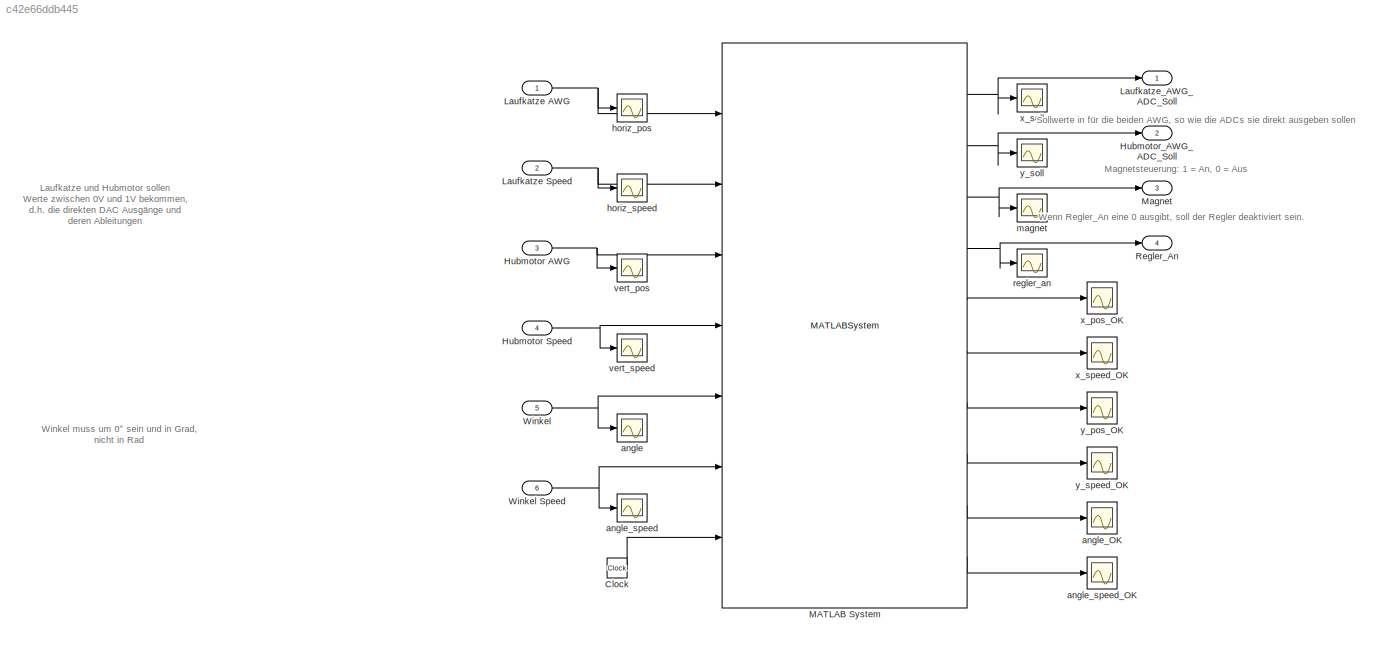
MODEL slx_c42e66ddb445
KIND model
CONFIG AbsTol = auto
CONFIG EnableMultiTasking = off
CONFIG FixedStep = 0.001
CONFIG MaxStep = auto
CONFIG MinStep = auto
CONFIG PostLoadFcn = , if any(exist('dsrtsu_mdlpostloadfcn', 'file') == [2, 3, 6]), try dsrtsu_mdlpostloadfcn('Execute', bdroot); catch fprintf('Error in PostLoadFcn (dsrtsu_mdlpostloadfcn) for model "%s":\n %s\n', bdroot, lasterr); end, end, \n
CONFIG RelTol = 1e-3
CONFIG SampleTimeConstraint = Unconstrained
CONFIG Solver = ode1
CONFIG SolverName = ode1
CONFIG StartTime = 0.0
CONFIG StopTime = 80
BLOCK [Clock] Clock
BLOCK [Inport] Hubmotor AWG
  IconDisplay = Port number
  OutDataTypeStr = double
  OutMax = 1
  OutMin = 0
  Port = 3
  PortDimensions = 1
  SignalType = real
BLOCK [Inport] Hubmotor Speed
  IconDisplay = Port number
  OutDataTypeStr = double
  Port = 4
  SignalType = real
BLOCK [Outport] Hubmotor_AWG_ADC_Soll
  IconDisplay = Port number
  Port = 2
  SignalName = Hubmotor_AWG_ADC_Soll
BLOCK [Inport] Laufkatze AWG
  IconDisplay = Port number
  OutDataTypeStr = double
  OutMax = 1
  OutMin = 0
  PortDimensions = 1
  SignalType = real
BLOCK [Inport] Laufkatze Speed
  IconDisplay = Port number
  OutDataTypeStr = double
  Port = 2
  SignalType = real
BLOCK [Outport] Laufkatze_AWG_ADC_Soll
  IconDisplay = Port number
  SignalName = Laufkatze_AWG_ADC_Soll
BLOCK [MATLABSystem] MATLAB System
  MaskDisplay = disp('Steuerung_Automatisierung');\nport_label('input',1,'horiz_pos');\nport_label('input',2,'horiz_speed');\nport_label('input',3,'vert_pos');\nport_label('input',4,'vert_speed');\nport_label('input',5,'angle');\nport_label('input',6,'angle_speed');\nport_label('input',7,'Clock');\nport_label('output',1,'horiz_setpoint');\nport_label('output',2,'vert_setpoint');\nport_label('output',3,'magnet_on');\nport_la...<+300ch>
  MaskType = Steuerung_Automatisierung
  Ports = [7, 10]
  SimulateUsing = Code generation
  System = Steuerung_Automatisierung
  add_midpoints = true
  box_sequence = [ 1, 2, 3, 4, 5 ]
  midpoint_height = -1
  param = param
  start_time = 30
BLOCK [Outport] Magnet
  IconDisplay = Port number
  Port = 3
  SignalName = Magnet
BLOCK [Outport] Regler_An
  IconDisplay = Port number
  Port = 4
  SignalName = Regler_An
BLOCK [Inport] Winkel
  IconDisplay = Port number
  OutDataTypeStr = double
  OutMax = 360
  OutMin = 0
  Port = 5
  PortDimensions = 1
  SignalType = real
BLOCK [Inport] Winkel  Speed
  IconDisplay = Port number
  OutDataTypeStr = double
  Port = 6
  SignalType = real
BLOCK [Scope] angle
  NumInputPorts = 1
  Ports = [1]
  ScopeSpecificationString = Simulink.scopes.TimeScopeBlockCfg('CurrentConfiguration', extmgr.ConfigurationSet(extmgr.Configuration('Core','General UI',true),extmgr.Configuration('Core','Source UI',true),extmgr.Configuration('Sources','WiredSimulink',true,'DataLoggingVariableName','ScopeData14','DataLoggingSaveFormat','Array','DataLoggingDecimation','1','DataLoggingDecimateData',true),extmgr.Configuration('Visuals','Time Doma...<+1457ch>
BLOCK [Scope] angle_OK
  NumInputPorts = 1
  Ports = [1]
  ScopeSpecificationString = Simulink.scopes.TimeScopeBlockCfg('CurrentConfiguration', extmgr.ConfigurationSet(extmgr.Configuration('Core','General UI',true),extmgr.Configuration('Core','Source UI',true),extmgr.Configuration('Sources','WiredSimulink',true,'DataLoggingVariableName','ScopeData8'),extmgr.Configuration('Visuals','Time Domain',true,'SerializedDisplays',{struct('MinYLimReal','-0.125','MaxYLimReal','1.125','YLabelRe...<+1362ch>
BLOCK [Scope] angle_speed
  NumInputPorts = 1
  Ports = [1]
  ScopeSpecificationString = Simulink.scopes.TimeScopeBlockCfg('CurrentConfiguration', extmgr.ConfigurationSet(extmgr.Configuration('Core','General UI',true),extmgr.Configuration('Core','Source UI',true),extmgr.Configuration('Sources','WiredSimulink',true,'DataLoggingVariableName','ScopeData15','DataLoggingSaveFormat','Array','DataLoggingDecimation','1','DataLoggingDecimateData',true),extmgr.Configuration('Visuals','Time Doma...<+1464ch>
BLOCK [Scope] angle_speed_OK
  NumInputPorts = 1
  Ports = [1]
  ScopeSpecificationString = C++SS(StrPVP('SaveName','ScopeData9'),StrPVP('LimitDataPoints','on'),StrPVP('DataFormat','Array'),StrPVP('Decimation','1'),StrPVP('BlockParamSampleInput','off'))
BLOCK [Scope] horiz_pos
  NumInputPorts = 1
  Ports = [1]
  ScopeSpecificationString = Simulink.scopes.TimeScopeBlockCfg('CurrentConfiguration', extmgr.ConfigurationSet(extmgr.Configuration('Core','General UI',true),extmgr.Configuration('Core','Source UI',true),extmgr.Configuration('Sources','WiredSimulink',true,'DataLoggingVariableName','ScopeData10','DataLoggingSaveFormat','Array','DataLoggingDecimation','1','DataLoggingDecimateData',true),extmgr.Configuration('Visuals','Time Doma...<+1532ch>
BLOCK [Scope] horiz_speed
  NumInputPorts = 1
  Ports = [1]
  ScopeSpecificationString = Simulink.scopes.TimeScopeBlockCfg('CurrentConfiguration', extmgr.ConfigurationSet(extmgr.Configuration('Core','General UI',true),extmgr.Configuration('Core','Source UI',true),extmgr.Configuration('Sources','WiredSimulink',true,'DataLoggingVariableName','ScopeData11','DataLoggingSaveFormat','Array','DataLoggingDecimation','1','DataLoggingDecimateData',true),extmgr.Configuration('Visuals','Time Doma...<+1466ch>
BLOCK [Scope] magnet
  NumInputPorts = 1
  Ports = [1]
  ScopeSpecificationString = Simulink.scopes.TimeScopeBlockCfg('CurrentConfiguration', extmgr.ConfigurationSet(extmgr.Configuration('Core','General UI',true),extmgr.Configuration('Core','Source UI',true),extmgr.Configuration('Sources','WiredSimulink',true,'DataLoggingVariableName','ScopeData2'),extmgr.Configuration('Visuals','Time Domain',true,'SerializedDisplays',{struct('MinYLimReal','-1.00000','MaxYLimReal','1.00000','YLab...<+1398ch>
BLOCK [Scope] regler_an
  NumInputPorts = 1
  Ports = [1]
  ScopeSpecificationString = Simulink.scopes.TimeScopeBlockCfg('CurrentConfiguration', extmgr.ConfigurationSet(extmgr.Configuration('Core','General UI',true),extmgr.Configuration('Core','Source UI',true),extmgr.Configuration('Sources','WiredSimulink',true,'DataLoggingVariableName','ScopeData3','DataLoggingLimitDataPoints',true,'DataLoggingSaveFormat','Array','DataLoggingDecimation','1','DataLoggingDecimateData',true),extmgr.C...<+1465ch>
BLOCK [Scope] vert_pos
  NumInputPorts = 1
  Ports = [1]
  ScopeSpecificationString = Simulink.scopes.TimeScopeBlockCfg('CurrentConfiguration', extmgr.ConfigurationSet(extmgr.Configuration('Core','General UI',true),extmgr.Configuration('Core','Source UI',true),extmgr.Configuration('Sources','WiredSimulink',true,'DataLoggingVariableName','ScopeData12','DataLoggingSaveFormat','Array','DataLoggingDecimation','1','DataLoggingDecimateData',true),extmgr.Configuration('Visuals','Time Doma...<+1463ch>
BLOCK [Scope] vert_speed
  NumInputPorts = 1
  Ports = [1]
  ScopeSpecificationString = Simulink.scopes.TimeScopeBlockCfg('CurrentConfiguration', extmgr.ConfigurationSet(extmgr.Configuration('Core','General UI',true),extmgr.Configuration('Core','Source UI',true),extmgr.Configuration('Sources','WiredSimulink',true,'DataLoggingVariableName','ScopeData13','DataLoggingSaveFormat','Array','DataLoggingDecimation','1','DataLoggingDecimateData',true),extmgr.Configuration('Visuals','Time Doma...<+1465ch>
BLOCK [Scope] x_pos_OK
  NumInputPorts = 1
  Ports = [1]
  ScopeSpecificationString = Simulink.scopes.TimeScopeBlockCfg('CurrentConfiguration', extmgr.ConfigurationSet(extmgr.Configuration('Core','General UI',true),extmgr.Configuration('Core','Source UI',true),extmgr.Configuration('Sources','WiredSimulink',true,'DataLoggingVariableName','ScopeData4'),extmgr.Configuration('Visuals','Time Domain',true,'SerializedDisplays',{struct('MinYLimReal','-0.8232','MaxYLimReal','1.1768','YLabel...<+1467ch>
BLOCK [Scope] x_soll
  NumInputPorts = 1
  Ports = [1]
  ScopeSpecificationString = Simulink.scopes.TimeScopeBlockCfg('CurrentConfiguration', extmgr.ConfigurationSet(extmgr.Configuration('Core','General UI',true),extmgr.Configuration('Core','Source UI',true),extmgr.Configuration('Sources','WiredSimulink',true,'DataLoggingSaveFormat','Array','DataLoggingDecimation','1','DataLoggingDecimateData',true),extmgr.Configuration('Visuals','Time Domain',true,'SerializedDisplays',{struct('M...<+1474ch>
BLOCK [Scope] x_speed_OK
  NumInputPorts = 1
  Ports = [1]
  ScopeSpecificationString = Simulink.scopes.TimeScopeBlockCfg('CurrentConfiguration', extmgr.ConfigurationSet(extmgr.Configuration('Core','General UI',true),extmgr.Configuration('Core','Source UI',true),extmgr.Configuration('Sources','WiredSimulink',true,'DataLoggingVariableName','ScopeData5'),extmgr.Configuration('Visuals','Time Domain',true,'SerializedDisplays',{struct('MinYLimReal','-0.125','MaxYLimReal','1.125','YLabelRe...<+1392ch>
BLOCK [Scope] y_pos_OK
  NumInputPorts = 1
  Ports = [1]
  ScopeSpecificationString = Simulink.scopes.TimeScopeBlockCfg('CurrentConfiguration', extmgr.ConfigurationSet(extmgr.Configuration('Core','General UI',true),extmgr.Configuration('Core','Source UI',true),extmgr.Configuration('Sources','WiredSimulink',true,'DataLoggingVariableName','ScopeData6'),extmgr.Configuration('Visuals','Time Domain',true,'SerializedDisplays',{struct('MinYLimReal','-1.00000','MaxYLimReal','1.00000','YLab...<+1403ch>
BLOCK [Scope] y_soll
  NumInputPorts = 1
  Ports = [1]
  ScopeSpecificationString = Simulink.scopes.TimeScopeBlockCfg('CurrentConfiguration', extmgr.ConfigurationSet(extmgr.Configuration('Core','General UI',true),extmgr.Configuration('Core','Source UI',true),extmgr.Configuration('Sources','WiredSimulink',true,'DataLoggingVariableName','ScopeData1','DataLoggingSaveFormat','Array','DataLoggingDecimation','1','DataLoggingDecimateData',true),extmgr.Configuration('Visuals','Time Domai...<+1465ch>
BLOCK [Scope] y_speed_OK
  NumInputPorts = 1
  Ports = [1]
  ScopeSpecificationString = Simulink.scopes.TimeScopeBlockCfg('CurrentConfiguration', extmgr.ConfigurationSet(extmgr.Configuration('Core','General UI',true),extmgr.Configuration('Core','Source UI',true),extmgr.Configuration('Sources','WiredSimulink',true,'DataLoggingVariableName','ScopeData7','DataLoggingSaveFormat','Array','DataLoggingDecimation','1','DataLoggingDecimateData',true),extmgr.Configuration('Visuals','Time Domai...<+1453ch>
ANNOTATION (root): Winkel muss um 0° sein und in Grad, nicht in Rad
ANNOTATION (root): Laufkatze und Hubmotor sollen Werte zwischen 0V und 1V bekommen, d.h. die direkten DAC Ausgänge und deren Ableitungen
ANNOTATION (root): Magnetsteuerung: 1 = An, 0 = Aus
ANNOTATION (root): Sollwerte in für die beiden AWG, so wie die ADCs sie direkt ausgeben sollen
ANNOTATION (root): Wenn Regler_An eine 0 ausgibt, soll der Regler deaktiviert sein.
LINE Clock:1 -> MATLAB System:7
NET Hubmotor AWG:1 -> MATLAB System:3, vert_pos:1
NET Hubmotor Speed:1 -> MATLAB System:4, vert_speed:1
NET Laufkatze AWG:1 -> MATLAB System:1, horiz_pos:1
NET Laufkatze Speed:1 -> MATLAB System:2, horiz_speed:1
NET MATLAB System:1 -> Laufkatze_AWG_ADC_Soll:1, x_soll:1
LINE MATLAB System:10 -> angle_speed_OK:1
NET MATLAB System:2 -> Hubmotor_AWG_ADC_Soll:1, y_soll:1
NET MATLAB System:3 -> Magnet:1, magnet:1
NET MATLAB System:4 -> Regler_An:1, regler_an:1
LINE MATLAB System:5 -> x_pos_OK:1
LINE MATLAB System:6 -> x_speed_OK:1
LINE MATLAB System:7 -> y_pos_OK:1
LINE MATLAB System:8 -> y_speed_OK:1
LINE MATLAB System:9 -> angle_OK:1
NET Winkel  Speed:1 -> MATLAB System:6, angle_speed:1
NET Winkel:1 -> MATLAB System:5, angle:1
note: NET lines group one-source signal fan-out (src -> all destinations, sorted); 1:1 wires keep LINE
